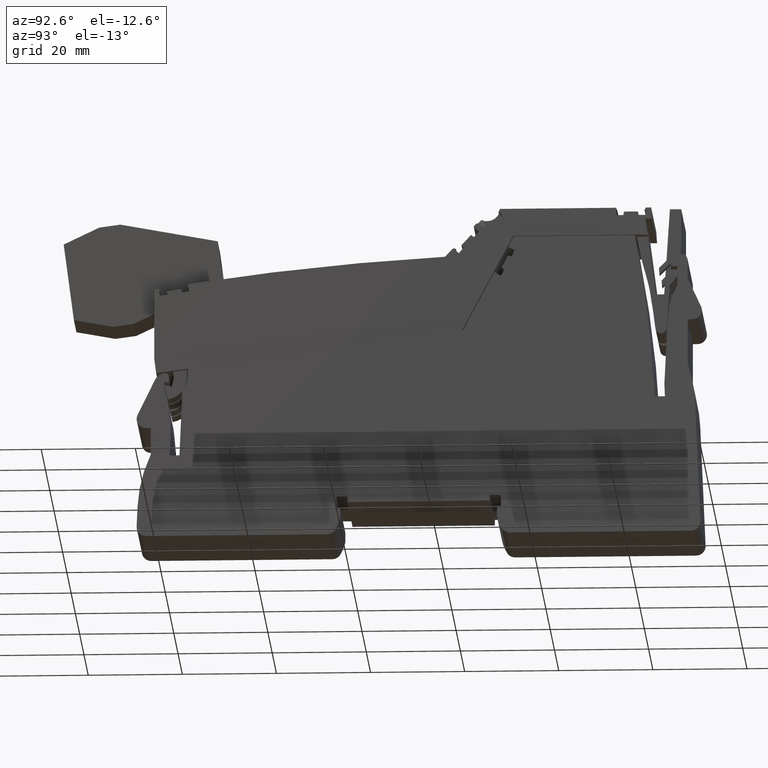
[diagram: clean part render]
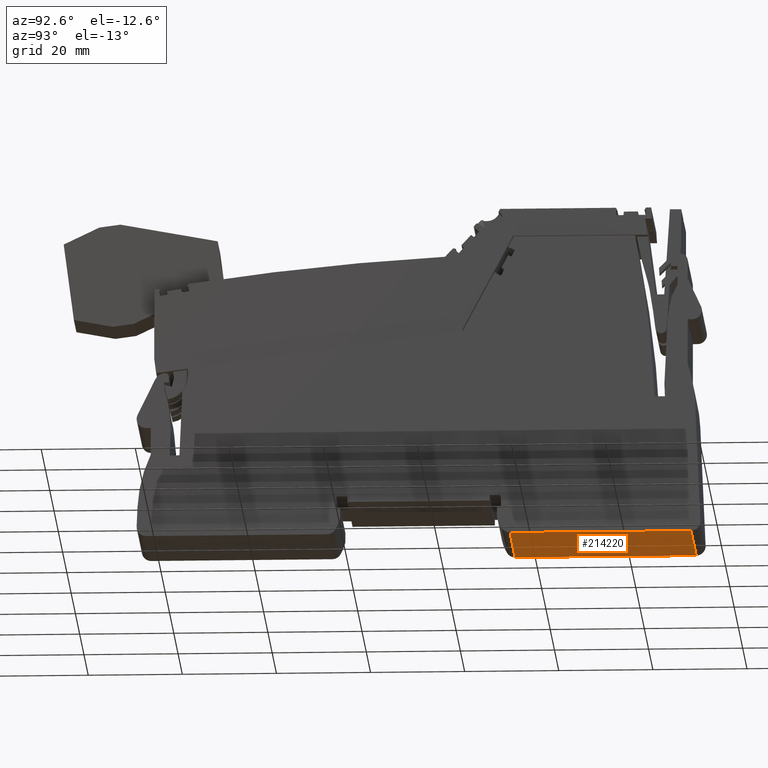
[diagram: same view with one face highlighted and labeled with its STEP entity id]
A machine part, auxiliary view. The second image highlights one B-rep face of the part: STEP entity #214220.
In plain terms, the highlighted planar face has unit normal (-0, 0, 1).
Its self-contained STEP definition (entity closure, byte-faithful):
#198990=CARTESIAN_POINT('',(294.439392952715,-62.9542780967935,12.15));
#199000=VERTEX_POINT('',#198990);
#199030=CARTESIAN_POINT('',(217.456642799386,-62.9542780967926,12.15));
#199040=DIRECTION('',(1.,-1.05193631583234E-14,0.));
#199050=VECTOR('',#199040,1.);
#199060=LINE('',#199030,#199050);
#199070=CARTESIAN_POINT('',(255.962554944728,-62.9542780967931,12.15));
#199080=VERTEX_POINT('',#199070);
#199090=EDGE_CURVE('',#199080,#199000,#199060,.T.);
#210370=CARTESIAN_POINT('',(255.962554944728,-62.9542780967931,-12.15));
#210380=VERTEX_POINT('',#210370);
#210410=CARTESIAN_POINT('',(-8.53959677095069E-15,-62.9542780967904,
-12.15));
#210420=DIRECTION('',(1.,-1.05193631583234E-14,0.));
#210430=VECTOR('',#210420,1.);
#210440=LINE('',#210410,#210430);
#210450=CARTESIAN_POINT('',(294.439392952715,-62.9542780967935,-12.15));
#210460=VERTEX_POINT('',#210450);
#210470=EDGE_CURVE('',#210380,#210460,#210440,.T.);
#213880=CARTESIAN_POINT('',(255.962554944728,-62.9542780967931,-12.15));
#213890=DIRECTION('',(1.61619556307429E-58,1.53640057743941E-44,1.));
#213900=VECTOR('',#213890,1.);
#213910=LINE('',#213880,#213900);
#213920=EDGE_CURVE('',#210380,#199080,#213910,.T.);
#214060=CARTESIAN_POINT('',(255.962554944728,-62.9542780967931,-12.15));
#214070=DIRECTION('',(1.05193631583234E-14,1.,-1.53640057743941E-44));
#214080=DIRECTION('',(-1.,1.05193631583234E-14,0.));
#214090=AXIS2_PLACEMENT_3D('',#214060,#214070,#214080);
#214100=PLANE('',#214090);
#214110=ORIENTED_EDGE('',*,*,#210470,.T.);
#214120=ORIENTED_EDGE('',*,*,#213920,.F.);
#214130=ORIENTED_EDGE('',*,*,#199090,.F.);
#214140=CARTESIAN_POINT('',(294.439392952715,-62.9542780967935,-12.15));
#214150=DIRECTION('',(1.61619556307429E-58,1.53640057743941E-44,1.));
#214160=VECTOR('',#214150,1.);
#214170=LINE('',#214140,#214160);
#214180=EDGE_CURVE('',#210460,#199000,#214170,.T.);
#214190=ORIENTED_EDGE('',*,*,#214180,.T.);
#214200=EDGE_LOOP('',(#214190,#214130,#214120,#214110));
#214210=FACE_OUTER_BOUND('',#214200,.T.);
#214220=ADVANCED_FACE('',(#214210),#214100,.F.);